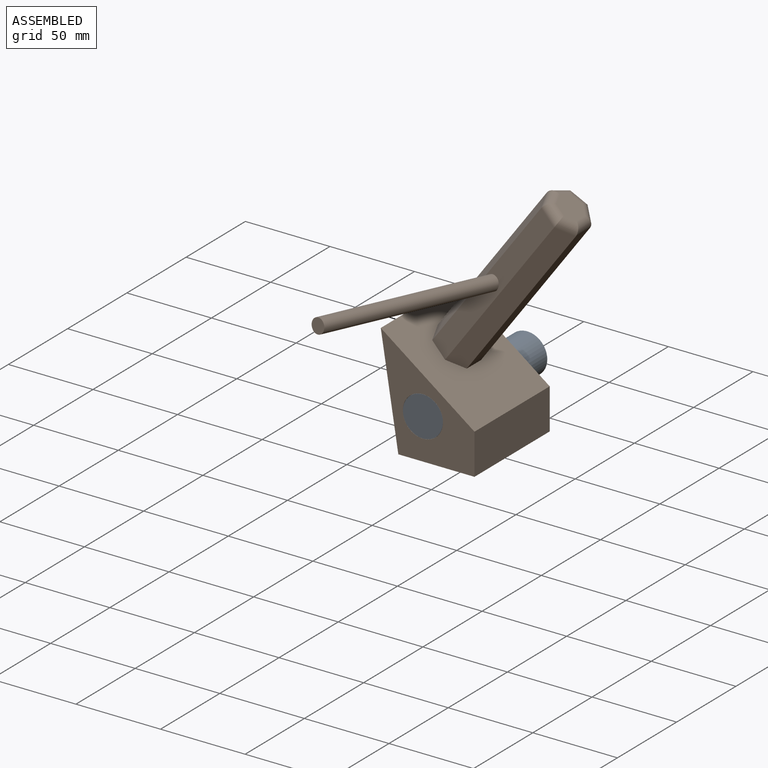
[diagram: assembled view]
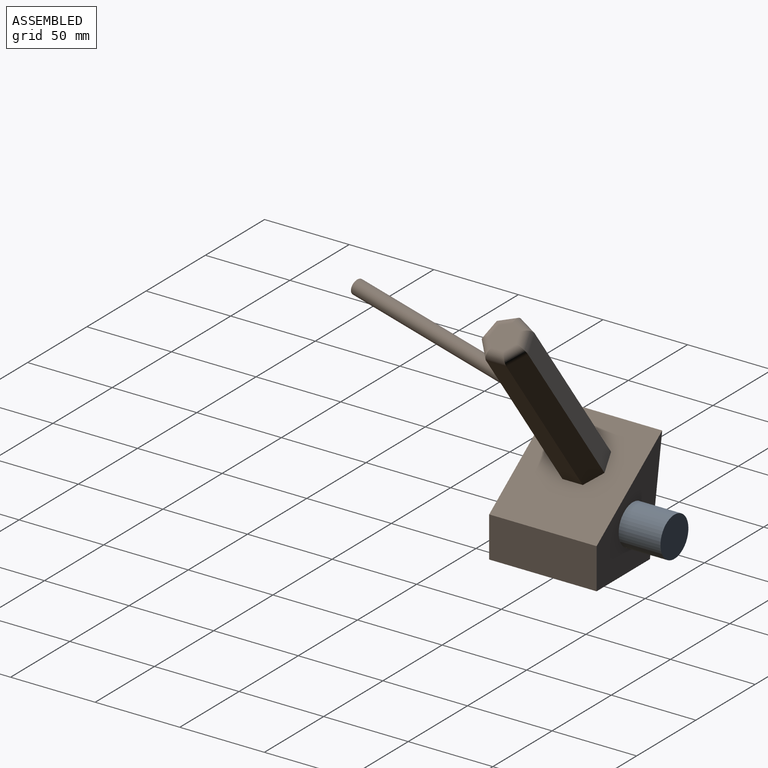
[diagram: assembled view, second angle]
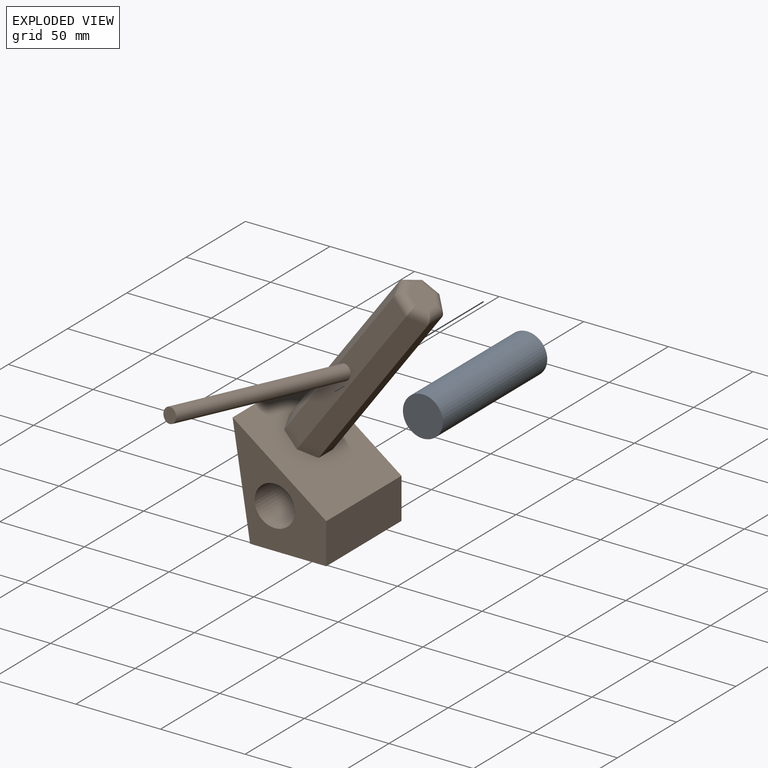
[diagram: exploded view]
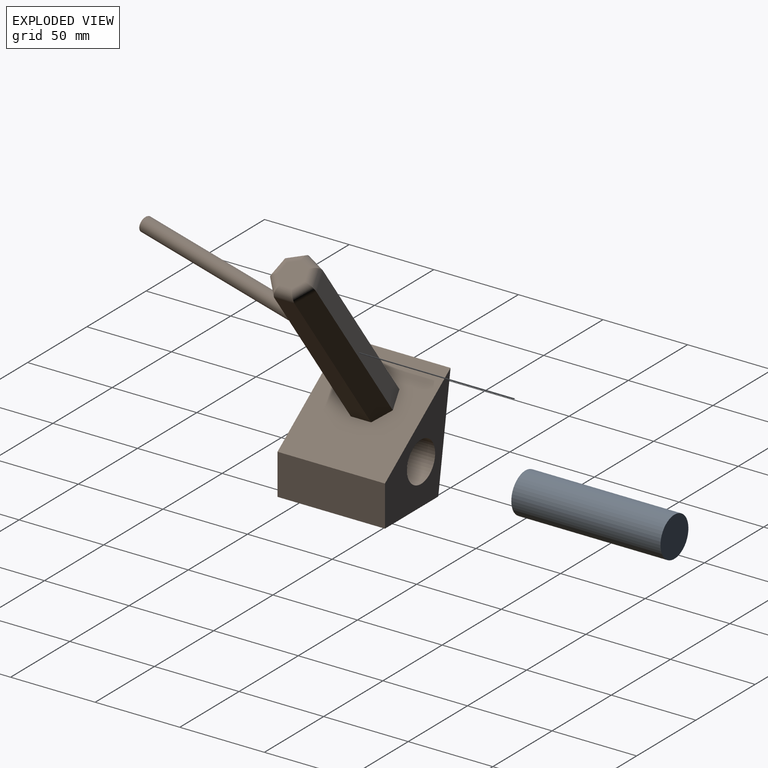
[diagram: exploded view, second angle]
ASSEMBLY  parts=2 mates=2
PART A: 3 faces, bbox 23.6x23.6x88.1 mm
  f0: cylinder r=11.81mm len=88.14mm, axis (0,0,-1), area 6540.8mm2, adj f1,f2
  f1: plane 23.62x23.62mm, normal (0,0,1), area 438.3mm2, adj f0
  f2: plane 23.62x23.62mm, normal (0,0,-1), area 438.3mm2, adj f0
PART B: 24 faces, bbox 97.8x160.2x146.9 mm
  f0: plane 64.73x63.5mm, normal (-0.99,0,-0.16), area 4162.9mm2, adj f1,f3,f5,f6
  f1: plane 63.5x45.01mm, normal (0,0,-1), area 2858mm2, adj f0,f2,f5,f6
  f2: plane 63.5x24.1mm, normal (1,0,0), area 1530.1mm2, adj f1,f3,f5,f6
  f3: plane 63.5x55.38mm, normal (0.59,0,0.81), area 3836.3mm2, adj f0,f2,f5,f6,f7,f8,f9,f10
  f4: cylinder r=11.88mm len=63.5mm, axis (0,1,0), area 4738.6mm2, adj f5,f6
  f5: plane 64.73x55.38mm, normal (0,-1,0), area 1680.8mm2, adj f0,f1,f2,f3,f4
  f6: plane 64.73x55.38mm, normal (0,1,0), area 1680.8mm2, adj f0,f1,f2,f3,f4
  f7: plane 93.41x72.04mm, normal (0.5,-0.78,-0.37), area 1310.2mm2, adj f3,f8,f13,f18
  f8: plane 87.85x64.47mm, normal (0.81,0,-0.59), area 1310.2mm2, adj f3,f7,f9,f16
  f9: plane 93.41x72.04mm, normal (0.5,0.78,-0.37), area 1310.2mm2, adj f3,f8,f10,f15
  f10: plane 94.79x73.92mm, normal (-0.18,0.97,0.13), area 1310.2mm2, adj f3,f9,f11,f17
  f11: plane 90.94x68.67mm, normal (-0.73,0.43,0.53), area 1310.2mm2, adj f3,f10,f12,f19
  f12: plane 90.94x68.67mm, normal (-0.73,-0.43,0.53), area 1310.2mm2, adj f3,f11,f13,f21
  f13: plane 94.79x73.92mm, normal (-0.18,-0.97,0.13), area 1251.2mm2, adj f3,f7,f12,f20,f22
  f14: plane 16.02x12.6mm, normal (0.59,0,0.81), area 184.8mm2, adj f15,f16,f17,f18,f19,f20,f21
  f15: cylinder r=5.08mm len=11.53mm, axis (0.63,-0.62,-0.46), area 81.8mm2, adj f9,f14,f16,f17
  f16: cylinder r=5.08mm len=12.02mm, axis (0,-1,0), area 81.8mm2, adj f8,f14,f15,f18
  f17: cylinder r=5.08mm len=13.37mm, axis (0.79,0.22,-0.58), area 81.8mm2, adj f10,f14,f15,f19
  f18: cylinder r=5.08mm len=11.53mm, axis (-0.63,-0.62,0.46), area 81.8mm2, adj f7,f14,f16,f20
  f19: cylinder r=5.08mm len=13.04mm, axis (0.35,0.9,-0.26), area 81.8mm2, adj f11,f14,f17,f21
  f20: cylinder r=5.08mm len=13.37mm, axis (-0.79,0.22,0.58), area 81.8mm2, adj f13,f14,f18,f21
  f21: cylinder r=5.08mm len=13.04mm, axis (-0.35,0.9,0.26), area 81.8mm2, adj f12,f14,f19,f20
  f22: cylinder r=4.33mm len=118.56mm, axis (0.18,0.97,-0.13), area 3257.9mm2, adj f13,f23
  f23: plane 8.59x8.53mm, normal (-0.18,-0.97,0.13), area 59mm2, adj f22
PLACE A rot(axis=(1,0,0),90deg) t=(-167.06,55.36,56.91)mm
PLACE B t=(-136.57,30.72,56.91)mm
MATE slider A.f0 <-> B.f4  axis (0,1,0) through (-167.06,11.29,56.91)mm
MATE parallel A.f0 <-> B.f5  axis (0,-1,0) through (-167.06,-32.78,56.91)mm
